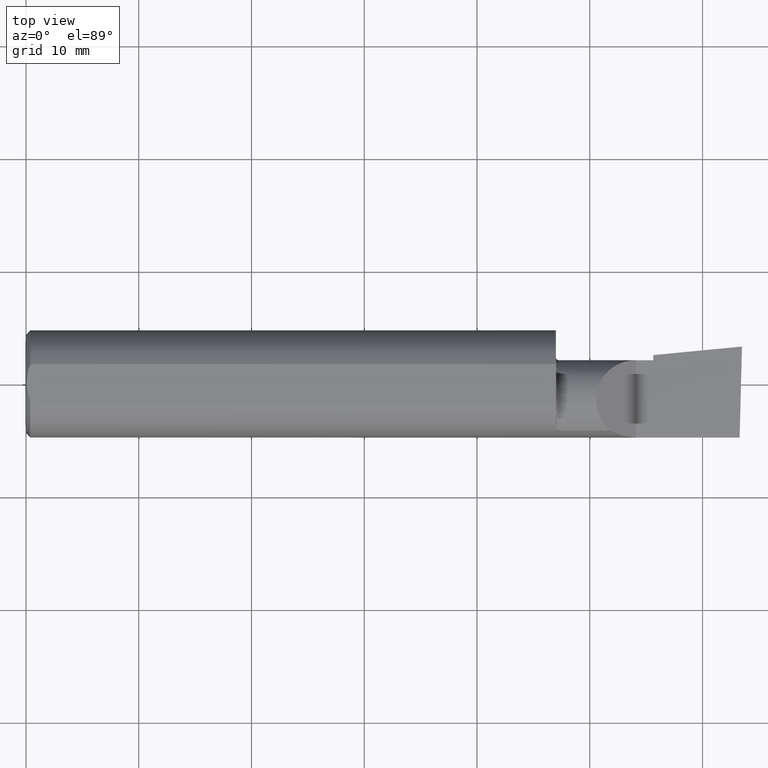
[diagram: clean part render]
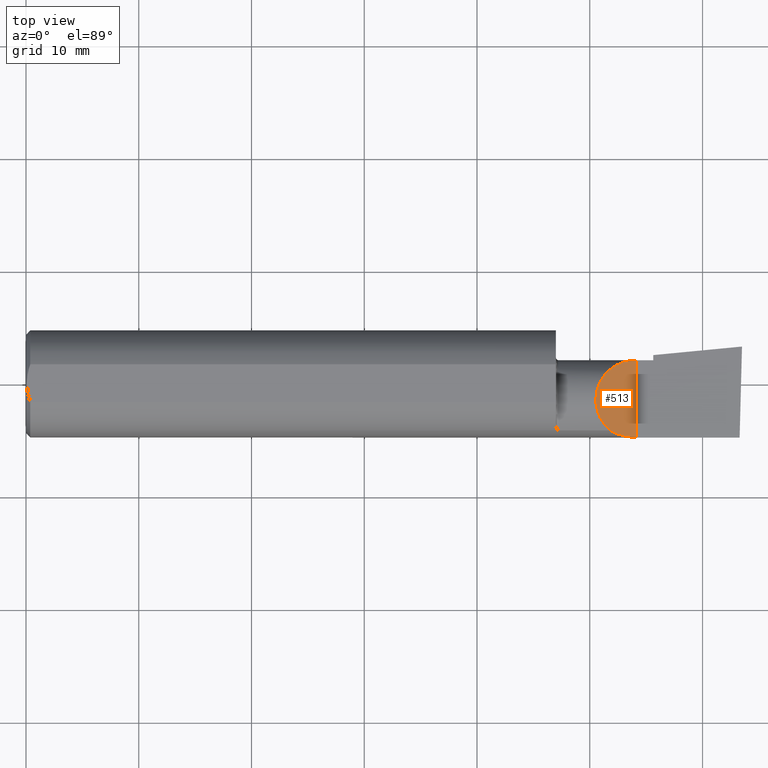
[diagram: same view with one face highlighted and labeled with its STEP entity id]
A machine part, top view. The second image highlights one B-rep face of the part: STEP entity #513.
In plain terms, the highlighted planar face has unit normal (-0.7071, 0, -0.7071).
Its self-contained STEP definition (entity closure, byte-faithful):
#20 = CARTESIAN_POINT ( 'NONE',  ( 2.129999999999999893, -0.2500000000000000555, 1.065442715258197396E-16 ) ) ;
#24 = CARTESIAN_POINT ( 'NONE',  ( 2.129999999999999893, 0.08264999999999990410, 1.065442715258197396E-16 ) ) ;
#32 = CARTESIAN_POINT ( 'NONE',  ( 2.129999999999999893, -0.1873499999999999888, 1.065442715258197396E-16 ) ) ;
#33 = VECTOR ( 'NONE', #122, 39.37007874015748143 ) ;
#38 = CARTESIAN_POINT ( 'NONE',  ( 2.129999999999999893, 0.08264999999999990410, 1.065442715258197396E-16 ) ) ;
#42 = CARTESIAN_POINT ( 'NONE',  ( 2.097861799102314961, -0.1873500000000000165, 0.03213820089768509858 ) ) ;
#46 = DIRECTION ( 'NONE',  ( -0.7071067811865511255, 0.0000000000000000000, 0.7071067811865437980 ) ) ;
#87 = EDGE_CURVE ( 'NONE', #563, #519, #343, .T. ) ;
#95 = ORIENTED_EDGE ( 'NONE', *, *, #87, .F. ) ;
#96 = PLANE ( 'NONE',  #436 ) ;
#122 = DIRECTION ( 'NONE',  ( -0.0000000000000000000, 1.000000000000000000, -0.0000000000000000000 ) ) ;
#162 = CARTESIAN_POINT ( 'NONE',  ( 1.921229036482944075, -0.06260079402492431389, 0.2087709635170538203 ) ) ;
#188 = DIRECTION ( 'NONE',  ( -0.7071067811865439090, 0.0000000000000000000, -0.7071067811865512365 ) ) ;
#232 = EDGE_CURVE ( 'NONE', #512, #519, #255, .T. ) ;
#237 = CARTESIAN_POINT ( 'NONE',  ( 2.038695632261437130, -0.1635956445993029529, 0.09130436773856191734 ) ) ;
#238 = CARTESIAN_POINT ( 'NONE',  ( 2.066758987970638284, -0.1792580844883770730, 0.06324101202936138755 ) ) ;
#251 = CARTESIAN_POINT ( 'NONE',  ( 2.129999999999999893, -0.1873499999999999888, 1.065442715258197396E-16 ) ) ;
#255 = LINE ( 'NONE', #503, #33 ) ;
#270 = CARTESIAN_POINT ( 'NONE',  ( 2.038695632261437130, -0.1635956445993029529, 0.09130436773856191734 ) ) ;
#324 = CARTESIAN_POINT ( 'NONE',  ( 2.038695632261437130, -0.1635956445993029529, 0.09130436773856191734 ) ) ;
#343 =( BOUNDED_CURVE ( )  B_SPLINE_CURVE ( 3, ( #270, #162, #591, #38 ),
 .UNSPECIFIED., .F., .F. ) 
 B_SPLINE_CURVE_WITH_KNOTS ( ( 4, 4 ),
 ( 5.422530673488458852, 7.853981633974482790 ),
 .UNSPECIFIED. ) 
 CURVE ( )  GEOMETRIC_REPRESENTATION_ITEM ( )  RATIONAL_B_SPLINE_CURVE ( ( 1.000000000000000000, 0.5651045289226863666, 0.5651045289226863666, 1.000000000000000000 ) ) 
 REPRESENTATION_ITEM ( '' )  );
#350 = ORIENTED_EDGE ( 'NONE', *, *, #449, .F. ) ;
#359 =( BOUNDED_CURVE ( )  B_SPLINE_CURVE ( 3, ( #251, #42, #238, #237 ),
 .UNSPECIFIED., .F., .F. ) 
 B_SPLINE_CURVE_WITH_KNOTS ( ( 4, 4 ),
 ( 4.712388980384689674, 5.221437360734125122 ),
 .UNSPECIFIED. ) 
 CURVE ( )  GEOMETRIC_REPRESENTATION_ITEM ( )  RATIONAL_B_SPLINE_CURVE ( ( 1.000000000000000000, 0.9785221379938656705, 0.9785221379938656705, 1.000000000000000000 ) ) 
 REPRESENTATION_ITEM ( '' )  );
#436 = AXIS2_PLACEMENT_3D ( 'NONE', #20, #188, #46 ) ;
#443 = EDGE_LOOP ( 'NONE', ( #95, #350, #572 ) ) ;
#449 = EDGE_CURVE ( 'NONE', #512, #563, #359, .T. ) ;
#498 = FACE_OUTER_BOUND ( 'NONE', #443, .T. ) ;
#503 = CARTESIAN_POINT ( 'NONE',  ( 2.129999999999999893, -0.2500000000000000555, 1.065442715258197396E-16 ) ) ;
#512 = VERTEX_POINT ( 'NONE', #32 ) ;
#513 = ADVANCED_FACE ( 'NONE', ( #498 ), #96, .F. ) ;
#519 = VERTEX_POINT ( 'NONE', #24 ) ;
#563 = VERTEX_POINT ( 'NONE', #324 ) ;
#572 = ORIENTED_EDGE ( 'NONE', *, *, #232, .T. ) ;
#591 = CARTESIAN_POINT ( 'NONE',  ( 1.975085956200449022, 0.08265000000000000124, 0.1549140437995494002 ) ) ;